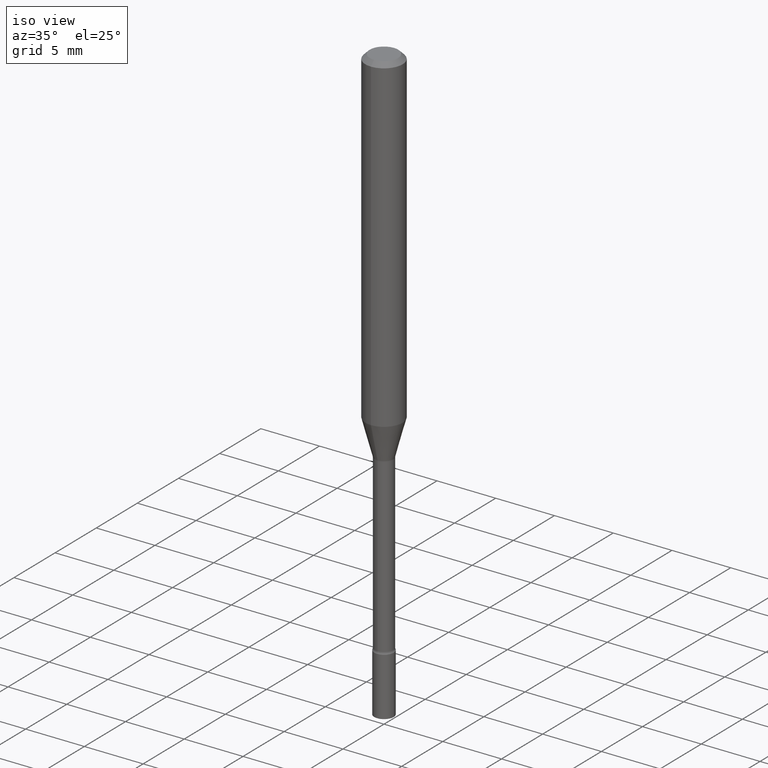
[diagram: clean part render]
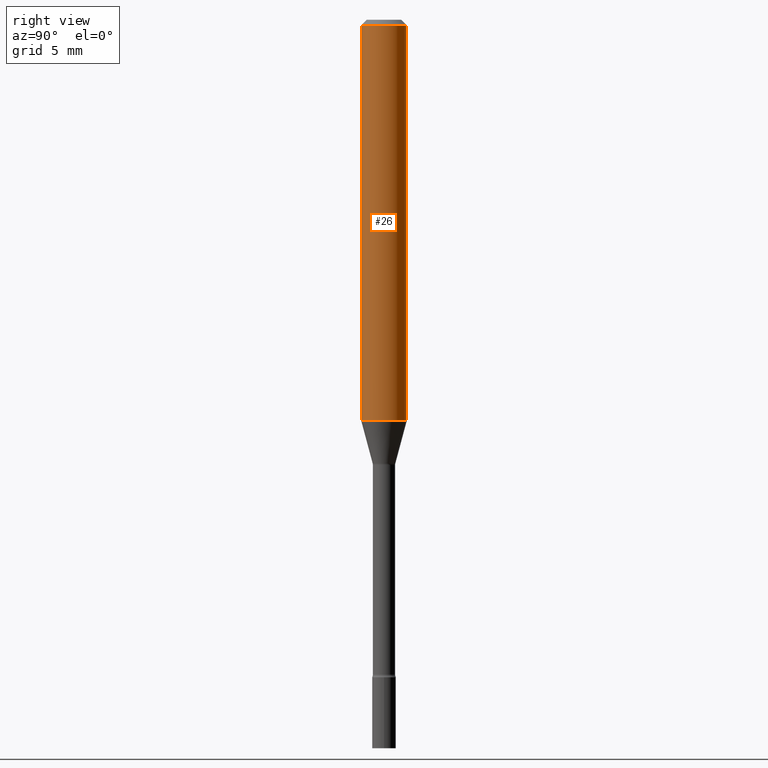
[diagram: tour spotlight — one face highlighted and labeled with its STEP entity id]
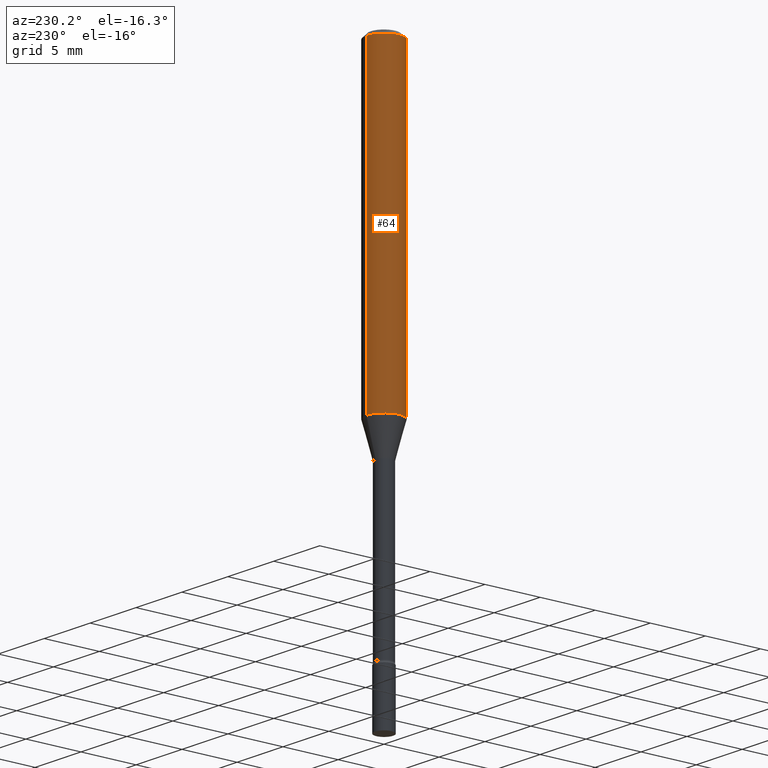
[diagram: tour spotlight — one face highlighted and labeled with its STEP entity id]
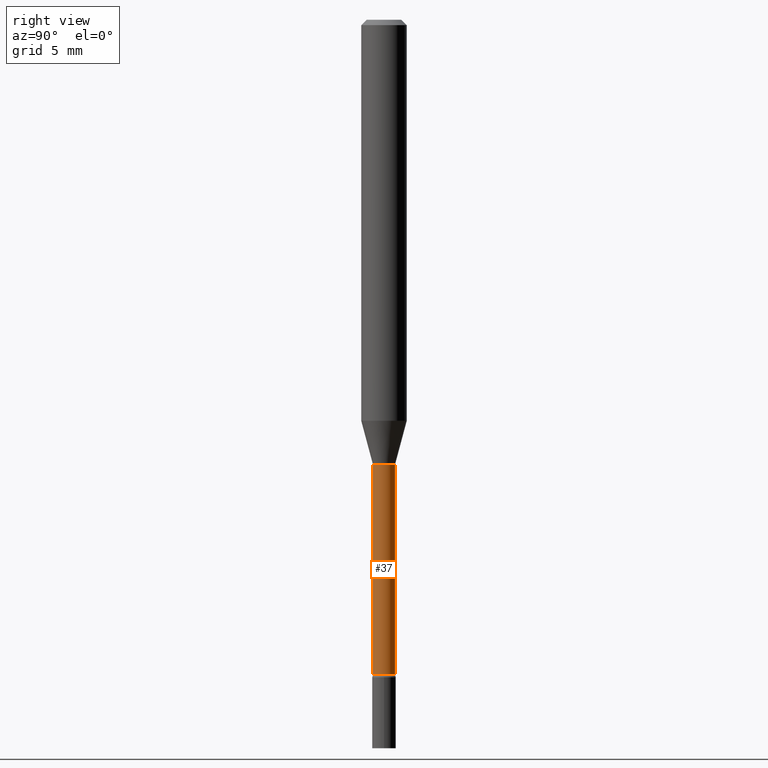
[diagram: tour spotlight — one face highlighted and labeled with its STEP entity id]
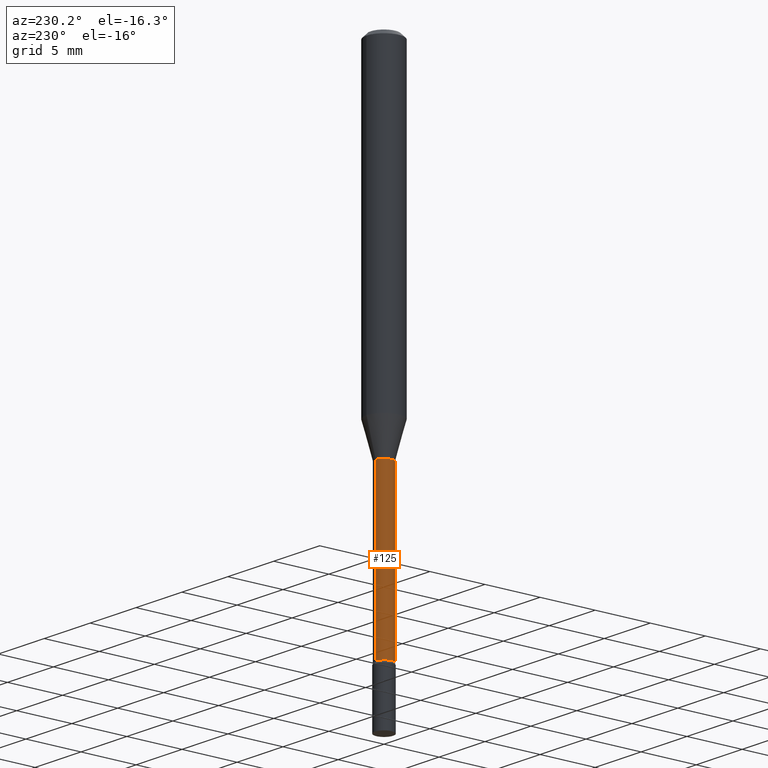
[diagram: tour spotlight — one face highlighted and labeled with its STEP entity id]
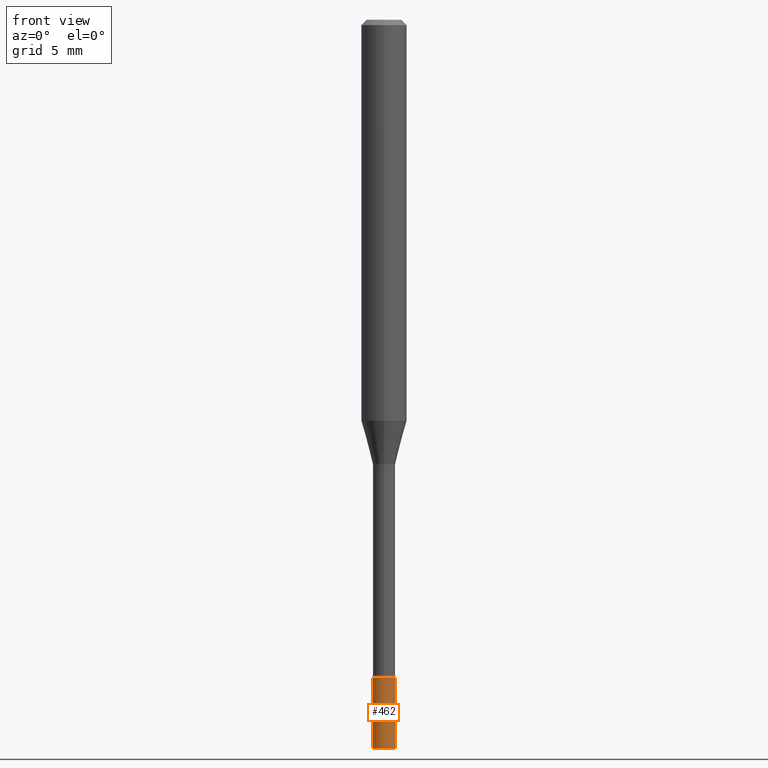
[diagram: tour spotlight — one face highlighted and labeled with its STEP entity id]
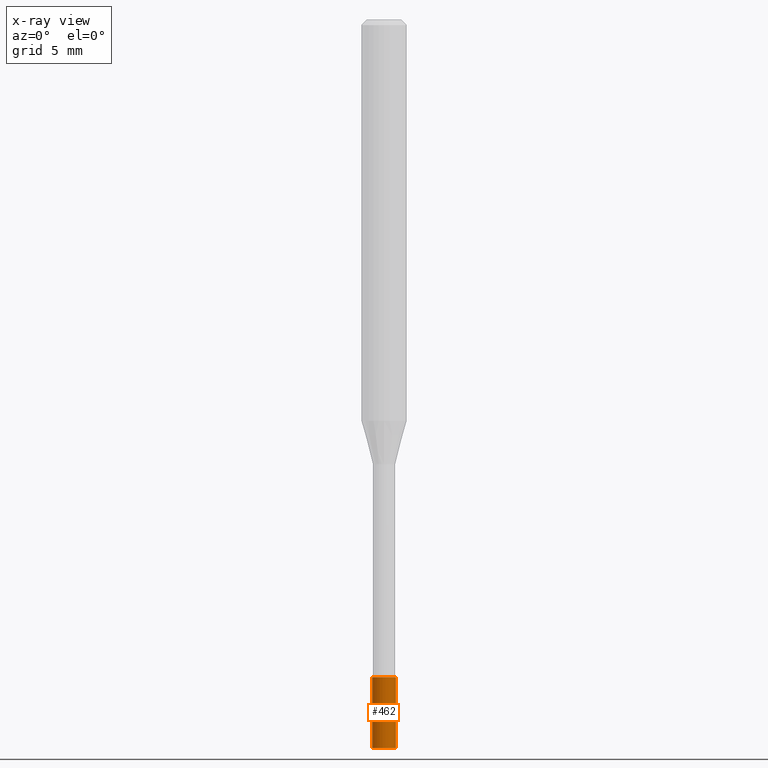
[diagram: x-ray of the same camera — body ghosted, this tour face saturated]
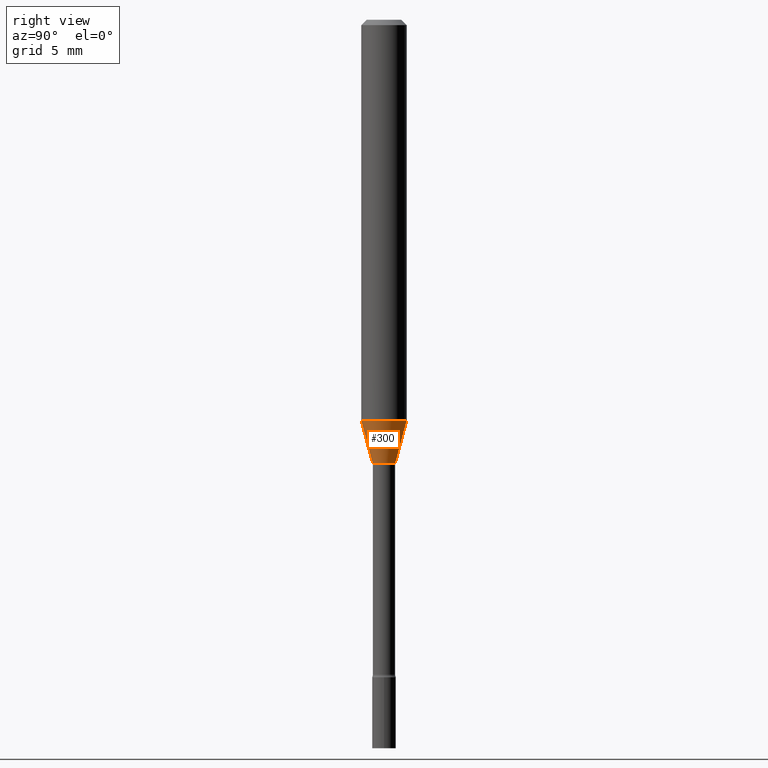
[diagram: tour spotlight — one face highlighted and labeled with its STEP entity id]
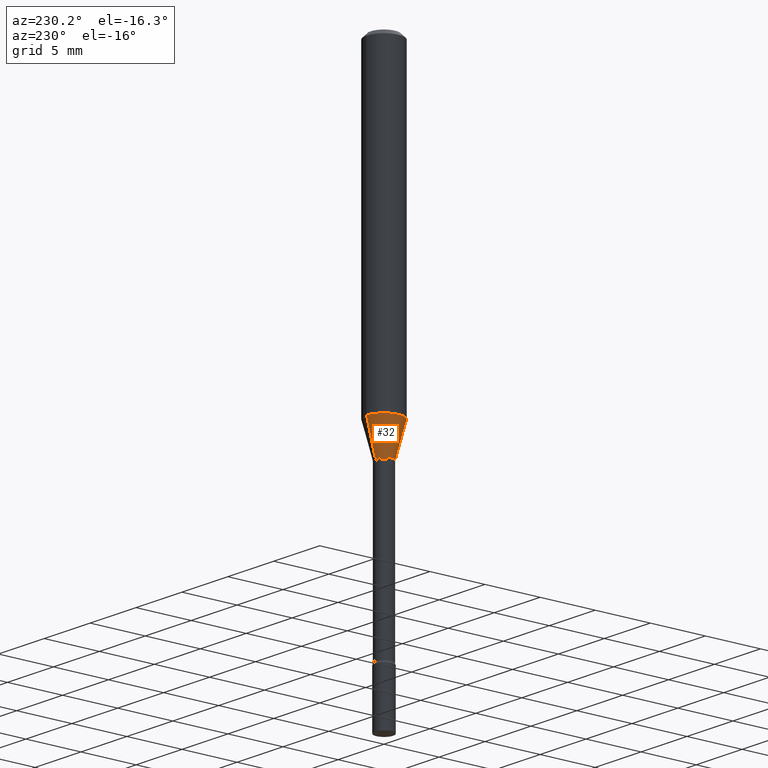
[diagram: tour spotlight — one face highlighted and labeled with its STEP entity id]
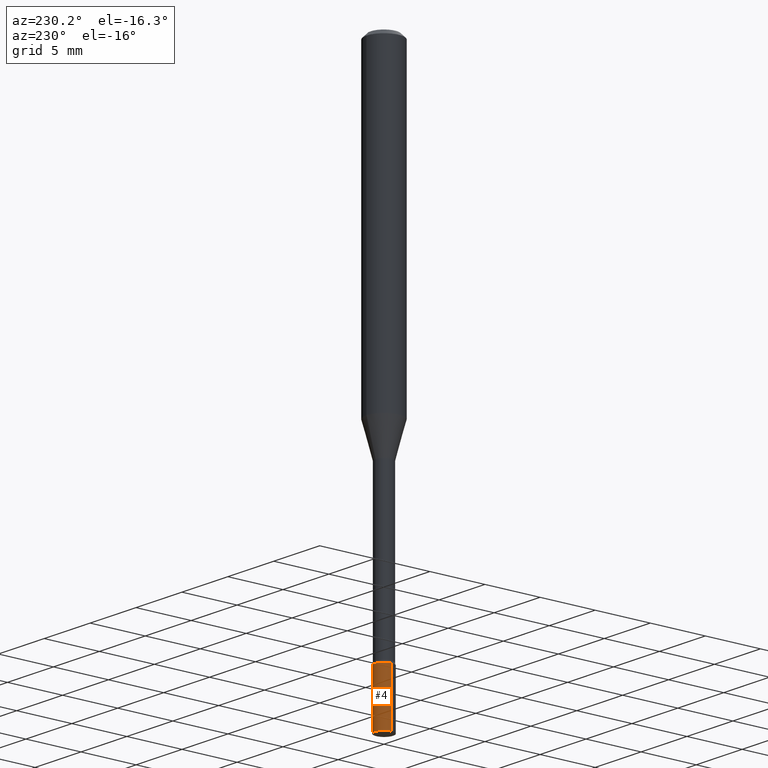
[diagram: tour spotlight — one face highlighted and labeled with its STEP entity id]
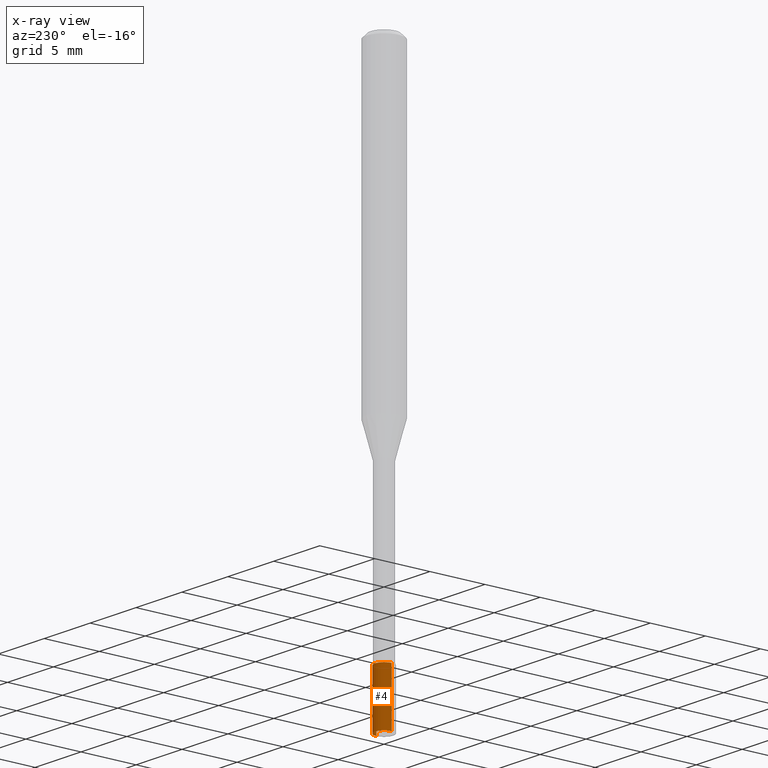
[diagram: x-ray of the same camera — body ghosted, this tour face saturated]
A machine part: a face-by-face anatomy tour. The part has 18 B-rep faces; the first image is the clean iso view, then the 8 largest visible faces are spotlighted one at a time (largest first), each with its STEP entity span.

Face 1 — right view, entity #26. In plain terms, the highlighted cylindrical surface (edge-blend (fillet) strip) has radius 1.5875 mm, axis along (-0, 0, 1).
Definition (entity closure, byte-faithful):
#3 = CIRCLE ( 'NONE', #333, 0.06250000000000000000 ) ;
#6 = VERTEX_POINT ( 'NONE', #324 ) ;
#11 = VERTEX_POINT ( 'NONE', #13 ) ;
#13 = CARTESIAN_POINT ( 'NONE',  ( -4.364351673553912750E-16, -0.06250000000000005551, -0.01499999999999981209 ) ) ;
#26 = ADVANCED_FACE ( 'NONE', ( #370 ), #257, .T. ) ;
#41 = AXIS2_PLACEMENT_3D ( 'NONE', #218, #460, #128 ) ;
#44 = DIRECTION ( 'NONE',  ( -2.445517885456446816E-29, 3.491411054533210764E-15, 1.000000000000000000 ) ) ;
#87 = ORIENTED_EDGE ( 'NONE', *, *, #436, .F. ) ;
#92 = VECTOR ( 'NONE', #44, 39.37007874015748143 ) ;
#93 = EDGE_LOOP ( 'NONE', ( #327, #142, #492, #87 ) ) ;
#113 = DIRECTION ( 'NONE',  ( -6.982962677686265922E-15, -1.000000000000000000, 4.370956789862821150E-15 ) ) ;
#128 = DIRECTION ( 'NONE',  ( -6.982962677686265922E-15, -1.000000000000000000, 3.491411054533210764E-15 ) ) ;
#134 = CARTESIAN_POINT ( 'NONE',  ( -4.364351673553916201E-16, -0.06250000000000000000, 2.182131909083256727E-16 ) ) ;
#142 = ORIENTED_EDGE ( 'NONE', *, *, #267, .T. ) ;
#156 = LINE ( 'NONE', #314, #92 ) ;
#181 = DIRECTION ( 'NONE',  ( -2.445517885456446816E-29, 3.491411054533210764E-15, 1.000000000000000000 ) ) ;
#182 = VERTEX_POINT ( 'NONE', #229 ) ;
#218 = CARTESIAN_POINT ( 'NONE',  ( 0.000000000000000000, 0.000000000000000000, 0.000000000000000000 ) ) ;
#229 = CARTESIAN_POINT ( 'NONE',  ( 4.440892098500897333E-16, 0.06249999999999995837, -0.01500000000000024751 ) ) ;
#231 = EDGE_CURVE ( 'NONE', #374, #6, #465, .T. ) ;
#257 = CYLINDRICAL_SURFACE ( 'NONE', #41, 0.06250000000000000000 ) ;
#267 = EDGE_CURVE ( 'NONE', #6, #182, #156, .T. ) ;
#303 = DIRECTION ( 'NONE',  ( -6.982962677686265922E-15, -1.000000000000000000, 3.483106191921935554E-15 ) ) ;
#314 = CARTESIAN_POINT ( 'NONE',  ( 4.440892098500625669E-16, 0.06250000000000000000, -2.182131909083256727E-16 ) ) ;
#320 = CARTESIAN_POINT ( 'NONE',  ( -4.364351673553646016E-16, -0.06250000000000383027, -1.100760976698174298 ) ) ;
#324 = CARTESIAN_POINT ( 'NONE',  ( 4.440892098500895360E-16, 0.06249999999999616279, -1.100760976698174742 ) ) ;
#327 = ORIENTED_EDGE ( 'NONE', *, *, #231, .T. ) ;
#333 = AXIS2_PLACEMENT_3D ( 'NONE', #469, #508, #303 ) ;
#356 = DIRECTION ( 'NONE',  ( -2.445517885456446816E-29, 3.491411054533210764E-15, 1.000000000000000000 ) ) ;
#370 = FACE_OUTER_BOUND ( 'NONE', #93, .T. ) ;
#374 = VERTEX_POINT ( 'NONE', #320 ) ;
#436 = EDGE_CURVE ( 'NONE', #374, #11, #495, .T. ) ;
#438 = AXIS2_PLACEMENT_3D ( 'NONE', #444, #356, #113 ) ;
#444 = CARTESIAN_POINT ( 'NONE',  ( 2.691930656127892449E-29, -3.843209042442780921E-15, -1.100760976698174520 ) ) ;
#460 = DIRECTION ( 'NONE',  ( -2.445517885456446816E-29, 3.491411054533210764E-15, 1.000000000000000000 ) ) ;
#465 = CIRCLE ( 'NONE', #438, 0.06250000000000000000 ) ;
#469 = CARTESIAN_POINT ( 'NONE',  ( 3.668276828184677738E-31, -5.237116581799826623E-17, -0.01500000000000003067 ) ) ;
#477 = EDGE_CURVE ( 'NONE', #11, #182, #3, .T. ) ;
#492 = ORIENTED_EDGE ( 'NONE', *, *, #477, .F. ) ;
#495 = LINE ( 'NONE', #134, #497 ) ;
#497 = VECTOR ( 'NONE', #181, 39.37007874015748143 ) ;
#508 = DIRECTION ( 'NONE',  ( -2.445517885456446816E-29, 3.491411054533210764E-15, 1.000000000000000000 ) ) ;

Face 2 — auxiliary view, entity #64. In plain terms, the highlighted cylindrical surface (edge-blend (fillet) strip) has radius 1.5875 mm, axis along (-0, 0, 1).
Definition (entity closure, byte-faithful):
#1 = EDGE_CURVE ( 'NONE', #6, #374, #116, .T. ) ;
#6 = VERTEX_POINT ( 'NONE', #324 ) ;
#11 = VERTEX_POINT ( 'NONE', #13 ) ;
#13 = CARTESIAN_POINT ( 'NONE',  ( -4.364351673553912750E-16, -0.06250000000000005551, -0.01499999999999981209 ) ) ;
#19 = EDGE_CURVE ( 'NONE', #182, #11, #86, .T. ) ;
#44 = DIRECTION ( 'NONE',  ( -2.445517885456446816E-29, 3.491411054533210764E-15, 1.000000000000000000 ) ) ;
#64 = ADVANCED_FACE ( 'NONE', ( #71 ), #186, .T. ) ;
#68 = DIRECTION ( 'NONE',  ( -6.982962677686265922E-15, -1.000000000000000000, 3.491411054533210764E-15 ) ) ;
#71 = FACE_OUTER_BOUND ( 'NONE', #136, .T. ) ;
#86 = CIRCLE ( 'NONE', #342, 0.06250000000000000000 ) ;
#90 = ORIENTED_EDGE ( 'NONE', *, *, #19, .F. ) ;
#92 = VECTOR ( 'NONE', #44, 39.37007874015748143 ) ;
#96 = ORIENTED_EDGE ( 'NONE', *, *, #436, .T. ) ;
#100 = DIRECTION ( 'NONE',  ( -2.445517885456446816E-29, 3.491411054533210764E-15, 1.000000000000000000 ) ) ;
#116 = CIRCLE ( 'NONE', #412, 0.06250000000000000000 ) ;
#134 = CARTESIAN_POINT ( 'NONE',  ( -4.364351673553916201E-16, -0.06250000000000000000, 2.182131909083256727E-16 ) ) ;
#136 = EDGE_LOOP ( 'NONE', ( #168, #409, #96, #90 ) ) ;
#153 = AXIS2_PLACEMENT_3D ( 'NONE', #344, #425, #68 ) ;
#156 = LINE ( 'NONE', #314, #92 ) ;
#168 = ORIENTED_EDGE ( 'NONE', *, *, #267, .F. ) ;
#181 = DIRECTION ( 'NONE',  ( -2.445517885456446816E-29, 3.491411054533210764E-15, 1.000000000000000000 ) ) ;
#182 = VERTEX_POINT ( 'NONE', #229 ) ;
#186 = CYLINDRICAL_SURFACE ( 'NONE', #153, 0.06250000000000000000 ) ;
#210 = DIRECTION ( 'NONE',  ( -6.982962677686265922E-15, -1.000000000000000000, 4.370956789862821150E-15 ) ) ;
#229 = CARTESIAN_POINT ( 'NONE',  ( 4.440892098500897333E-16, 0.06249999999999995837, -0.01500000000000024751 ) ) ;
#252 = CARTESIAN_POINT ( 'NONE',  ( 2.691930656127892449E-29, -3.843209042442780921E-15, -1.100760976698174520 ) ) ;
#267 = EDGE_CURVE ( 'NONE', #6, #182, #156, .T. ) ;
#292 = DIRECTION ( 'NONE',  ( -2.445517885456446816E-29, 3.491411054533210764E-15, 1.000000000000000000 ) ) ;
#294 = CARTESIAN_POINT ( 'NONE',  ( 3.668276828184677738E-31, -5.237116581799826623E-17, -0.01500000000000003067 ) ) ;
#314 = CARTESIAN_POINT ( 'NONE',  ( 4.440892098500625669E-16, 0.06250000000000000000, -2.182131909083256727E-16 ) ) ;
#320 = CARTESIAN_POINT ( 'NONE',  ( -4.364351673553646016E-16, -0.06250000000000383027, -1.100760976698174298 ) ) ;
#324 = CARTESIAN_POINT ( 'NONE',  ( 4.440892098500895360E-16, 0.06249999999999616279, -1.100760976698174742 ) ) ;
#342 = AXIS2_PLACEMENT_3D ( 'NONE', #294, #100, #490 ) ;
#344 = CARTESIAN_POINT ( 'NONE',  ( 0.000000000000000000, 0.000000000000000000, 0.000000000000000000 ) ) ;
#374 = VERTEX_POINT ( 'NONE', #320 ) ;
#409 = ORIENTED_EDGE ( 'NONE', *, *, #1, .T. ) ;
#412 = AXIS2_PLACEMENT_3D ( 'NONE', #252, #292, #210 ) ;
#425 = DIRECTION ( 'NONE',  ( -2.445517885456446816E-29, 3.491411054533210764E-15, 1.000000000000000000 ) ) ;
#436 = EDGE_CURVE ( 'NONE', #374, #11, #495, .T. ) ;
#490 = DIRECTION ( 'NONE',  ( -6.982962677686265922E-15, -1.000000000000000000, 3.483106191921935554E-15 ) ) ;
#495 = LINE ( 'NONE', #134, #497 ) ;
#497 = VECTOR ( 'NONE', #181, 39.37007874015748143 ) ;

Face 3 — right view, entity #37. In plain terms, the highlighted cylindrical surface (edge-blend (fillet) strip) has radius 0.776 mm, axis along (-0, 0, 1).
Definition (entity closure, byte-faithful):
#27 = CARTESIAN_POINT ( 'NONE',  ( 0.000000000000000000, 0.000000000000000000, 0.000000000000000000 ) ) ;
#37 = ADVANCED_FACE ( 'NONE', ( #226 ), #299, .T. ) ;
#39 = CARTESIAN_POINT ( 'NONE',  ( 2.988361198319589844E-29, -4.266416281312019547E-15, -1.221974787463810941 ) ) ;
#53 = VERTEX_POINT ( 'NONE', #348 ) ;
#77 = EDGE_CURVE ( 'NONE', #418, #361, #380, .T. ) ;
#139 = ORIENTED_EDGE ( 'NONE', *, *, #77, .F. ) ;
#140 = CARTESIAN_POINT ( 'NONE',  ( 4.396073281200893495E-29, -6.276175259972856303E-15, -1.797604224178627419 ) ) ;
#144 = DIRECTION ( 'NONE',  ( -2.445517885456446816E-29, 3.491411054533210764E-15, 1.000000000000000000 ) ) ;
#149 = DIRECTION ( 'NONE',  ( -6.982962677686265922E-15, -1.000000000000000000, 3.491411054533210764E-15 ) ) ;
#167 = EDGE_CURVE ( 'NONE', #328, #53, #296, .T. ) ;
#169 = AXIS2_PLACEMENT_3D ( 'NONE', #39, #393, #360 ) ;
#170 = ORIENTED_EDGE ( 'NONE', *, *, #398, .T. ) ;
#194 = AXIS2_PLACEMENT_3D ( 'NONE', #27, #304, #149 ) ;
#203 = CARTESIAN_POINT ( 'NONE',  ( -2.133295098032855987E-16, -0.03055000000000427512, -1.221974787463810719 ) ) ;
#204 = EDGE_CURVE ( 'NONE', #361, #53, #315, .T. ) ;
#220 = ORIENTED_EDGE ( 'NONE', *, *, #204, .F. ) ;
#226 = FACE_OUTER_BOUND ( 'NONE', #457, .T. ) ;
#232 = CARTESIAN_POINT ( 'NONE',  ( -2.133295098033156247E-16, -0.03055000000000002852, 1.066626077159896874E-16 ) ) ;
#263 = DIRECTION ( 'NONE',  ( -6.982962677686265922E-15, -1.000000000000000000, 0.000000000000000000 ) ) ;
#286 = DIRECTION ( 'NONE',  ( -2.445517885456446816E-29, 3.491411054533210764E-15, 1.000000000000000000 ) ) ;
#296 = LINE ( 'NONE', #514, #332 ) ;
#299 = CYLINDRICAL_SURFACE ( 'NONE', #194, 0.03055000000000002852 ) ;
#304 = DIRECTION ( 'NONE',  ( -2.445517885456446816E-29, 3.491411054533210764E-15, 1.000000000000000000 ) ) ;
#315 = CIRCLE ( 'NONE', #169, 0.03055000000000000770 ) ;
#328 = VERTEX_POINT ( 'NONE', #355 ) ;
#332 = VECTOR ( 'NONE', #391, 39.37007874015748143 ) ;
#348 = CARTESIAN_POINT ( 'NONE',  ( 2.170708057747547391E-16, 0.03054999999999574029, -1.221974787463810941 ) ) ;
#355 = CARTESIAN_POINT ( 'NONE',  ( 2.239985974484157911E-16, 0.03054999999999377658, -1.797604224178627419 ) ) ;
#360 = DIRECTION ( 'NONE',  ( -6.982962677686265922E-15, -1.000000000000000000, 4.471109645931689948E-15 ) ) ;
#361 = VERTEX_POINT ( 'NONE', #203 ) ;
#375 = VECTOR ( 'NONE', #144, 39.37007874015748143 ) ;
#380 = LINE ( 'NONE', #232, #375 ) ;
#391 = DIRECTION ( 'NONE',  ( -2.445517885456446816E-29, 3.491411054533210764E-15, 1.000000000000000000 ) ) ;
#393 = DIRECTION ( 'NONE',  ( -2.445517885456446816E-29, 3.491411054533210764E-15, 1.000000000000000000 ) ) ;
#398 = EDGE_CURVE ( 'NONE', #418, #328, #481, .T. ) ;
#418 = VERTEX_POINT ( 'NONE', #451 ) ;
#446 = ORIENTED_EDGE ( 'NONE', *, *, #167, .T. ) ;
#451 = CARTESIAN_POINT ( 'NONE',  ( -2.133295098032718183E-16, -0.03055000000000632557, -1.797604224178627419 ) ) ;
#457 = EDGE_LOOP ( 'NONE', ( #170, #446, #220, #139 ) ) ;
#481 = CIRCLE ( 'NONE', #516, 0.03055000000000004934 ) ;
#514 = CARTESIAN_POINT ( 'NONE',  ( 2.170708057747107848E-16, 0.03055000000000002852, -1.066626077159896874E-16 ) ) ;
#516 = AXIS2_PLACEMENT_3D ( 'NONE', #140, #286, #263 ) ;

Face 4 — auxiliary view, entity #125. In plain terms, the highlighted cylindrical surface (edge-blend (fillet) strip) has radius 0.776 mm, axis along (-0, 0, 1).
Definition (entity closure, byte-faithful):
#43 = ORIENTED_EDGE ( 'NONE', *, *, #171, .T. ) ;
#53 = VERTEX_POINT ( 'NONE', #348 ) ;
#77 = EDGE_CURVE ( 'NONE', #418, #361, #380, .T. ) ;
#99 = ORIENTED_EDGE ( 'NONE', *, *, #138, .F. ) ;
#101 = DIRECTION ( 'NONE',  ( -2.445517885456446816E-29, 3.491411054533210764E-15, 1.000000000000000000 ) ) ;
#102 = AXIS2_PLACEMENT_3D ( 'NONE', #346, #101, #266 ) ;
#112 = DIRECTION ( 'NONE',  ( -6.982962677686265922E-15, -1.000000000000000000, 0.000000000000000000 ) ) ;
#125 = ADVANCED_FACE ( 'NONE', ( #473 ), #270, .T. ) ;
#138 = EDGE_CURVE ( 'NONE', #53, #361, #322, .T. ) ;
#144 = DIRECTION ( 'NONE',  ( -2.445517885456446816E-29, 3.491411054533210764E-15, 1.000000000000000000 ) ) ;
#167 = EDGE_CURVE ( 'NONE', #328, #53, #296, .T. ) ;
#171 = EDGE_CURVE ( 'NONE', #328, #418, #283, .T. ) ;
#190 = CARTESIAN_POINT ( 'NONE',  ( 4.396073281200893495E-29, -6.276175259972856303E-15, -1.797604224178627419 ) ) ;
#203 = CARTESIAN_POINT ( 'NONE',  ( -2.133295098032855987E-16, -0.03055000000000427512, -1.221974787463810719 ) ) ;
#211 = ORIENTED_EDGE ( 'NONE', *, *, #167, .F. ) ;
#232 = CARTESIAN_POINT ( 'NONE',  ( -2.133295098033156247E-16, -0.03055000000000002852, 1.066626077159896874E-16 ) ) ;
#234 = DIRECTION ( 'NONE',  ( -2.445517885456446816E-29, 3.491411054533210764E-15, 1.000000000000000000 ) ) ;
#241 = AXIS2_PLACEMENT_3D ( 'NONE', #432, #234, #268 ) ;
#266 = DIRECTION ( 'NONE',  ( -6.982962677686265922E-15, -1.000000000000000000, 4.471109645931689948E-15 ) ) ;
#268 = DIRECTION ( 'NONE',  ( -6.982962677686265922E-15, -1.000000000000000000, 3.491411054533210764E-15 ) ) ;
#270 = CYLINDRICAL_SURFACE ( 'NONE', #241, 0.03055000000000002852 ) ;
#283 = CIRCLE ( 'NONE', #351, 0.03055000000000004934 ) ;
#296 = LINE ( 'NONE', #514, #332 ) ;
#308 = DIRECTION ( 'NONE',  ( -2.445517885456446816E-29, 3.491411054533210764E-15, 1.000000000000000000 ) ) ;
#322 = CIRCLE ( 'NONE', #102, 0.03055000000000000770 ) ;
#328 = VERTEX_POINT ( 'NONE', #355 ) ;
#332 = VECTOR ( 'NONE', #391, 39.37007874015748143 ) ;
#346 = CARTESIAN_POINT ( 'NONE',  ( 2.988361198319589844E-29, -4.266416281312019547E-15, -1.221974787463810941 ) ) ;
#348 = CARTESIAN_POINT ( 'NONE',  ( 2.170708057747547391E-16, 0.03054999999999574029, -1.221974787463810941 ) ) ;
#351 = AXIS2_PLACEMENT_3D ( 'NONE', #190, #308, #112 ) ;
#355 = CARTESIAN_POINT ( 'NONE',  ( 2.239985974484157911E-16, 0.03054999999999377658, -1.797604224178627419 ) ) ;
#361 = VERTEX_POINT ( 'NONE', #203 ) ;
#375 = VECTOR ( 'NONE', #144, 39.37007874015748143 ) ;
#380 = LINE ( 'NONE', #232, #375 ) ;
#391 = DIRECTION ( 'NONE',  ( -2.445517885456446816E-29, 3.491411054533210764E-15, 1.000000000000000000 ) ) ;
#408 = EDGE_LOOP ( 'NONE', ( #211, #43, #488, #99 ) ) ;
#418 = VERTEX_POINT ( 'NONE', #451 ) ;
#432 = CARTESIAN_POINT ( 'NONE',  ( 0.000000000000000000, 0.000000000000000000, 0.000000000000000000 ) ) ;
#451 = CARTESIAN_POINT ( 'NONE',  ( -2.133295098032718183E-16, -0.03055000000000632557, -1.797604224178627419 ) ) ;
#473 = FACE_OUTER_BOUND ( 'NONE', #408, .T. ) ;
#488 = ORIENTED_EDGE ( 'NONE', *, *, #77, .T. ) ;
#514 = CARTESIAN_POINT ( 'NONE',  ( 2.170708057747107848E-16, 0.03055000000000002852, -1.066626077159896874E-16 ) ) ;

Face 5 — front view, entity #462. An x-ray twin of the same camera follows (body ghosted, this face saturated) — the face is partly hidden behind the body. In plain terms, the highlighted cylindrical surface (edge-blend (fillet) strip) has radius 0.8255 mm, axis along (-0, 0, 1).
Definition (entity closure, byte-faithful):
#31 = DIRECTION ( 'NONE',  ( -2.445468806185136597E-29, 3.491481338843145583E-15, 1.000000000000000000 ) ) ;
#48 = CARTESIAN_POINT ( 'NONE',  ( 0.03250000000000000111, -2.269462870248036484E-16, 1.584757452133678993E-30 ) ) ;
#50 = EDGE_LOOP ( 'NONE', ( #331, #423, #247, #172 ) ) ;
#65 = CARTESIAN_POINT ( 'NONE',  ( 0.03250000000000000111, -6.529070103636681305E-15, -1.804999999999999938 ) ) ;
#72 = DIRECTION ( 'NONE',  ( 1.000000000000000000, -6.982962677686258033E-15, 0.000000000000000000 ) ) ;
#88 = VERTEX_POINT ( 'NONE', #65 ) ;
#89 = LINE ( 'NONE', #214, #242 ) ;
#105 = EDGE_CURVE ( 'NONE', #498, #88, #365, .T. ) ;
#117 = AXIS2_PLACEMENT_3D ( 'NONE', #345, #384, #146 ) ;
#127 = DIRECTION ( 'NONE',  ( -2.445468806185136597E-29, 3.491481338843145583E-15, 1.000000000000000000 ) ) ;
#146 = DIRECTION ( 'NONE',  ( 1.000000000000000000, -6.982962677686265922E-15, 4.876176775795935232E-29 ) ) ;
#172 = ORIENTED_EDGE ( 'NONE', *, *, #105, .F. ) ;
#175 = VERTEX_POINT ( 'NONE', #193 ) ;
#176 = DIRECTION ( 'NONE',  ( 1.000000000000000000, -6.982962677686258033E-15, 0.000000000000000000 ) ) ;
#193 = CARTESIAN_POINT ( 'NONE',  ( 0.03250000000000000111, -7.209908964711093729E-15, -2.000000000000000000 ) ) ;
#209 = LINE ( 'NONE', #48, #385 ) ;
#214 = CARTESIAN_POINT ( 'NONE',  ( -0.03250000000000000111, 2.309263891220325683E-16, -1.598653904332844407E-30 ) ) ;
#223 = AXIS2_PLACEMENT_3D ( 'NONE', #274, #31, #72 ) ;
#228 = CARTESIAN_POINT ( 'NONE',  ( -0.03250000000000000111, -6.411616858027052188E-15, -2.000000000000000000 ) ) ;
#242 = VECTOR ( 'NONE', #329, 39.37007874015748143 ) ;
#247 = ORIENTED_EDGE ( 'NONE', *, *, #390, .T. ) ;
#274 = CARTESIAN_POINT ( 'NONE',  ( 4.414071195164171423E-29, -6.302123816611877952E-15, -1.804999999999999938 ) ) ;
#295 = FACE_OUTER_BOUND ( 'NONE', #50, .T. ) ;
#298 = AXIS2_PLACEMENT_3D ( 'NONE', #461, #127, #176 ) ;
#326 = DIRECTION ( 'NONE',  ( -2.445468806185136877E-29, 3.491481338843145188E-15, 1.000000000000000000 ) ) ;
#329 = DIRECTION ( 'NONE',  ( -2.445468806185136877E-29, 3.491481338843145188E-15, 1.000000000000000000 ) ) ;
#331 = ORIENTED_EDGE ( 'NONE', *, *, #427, .F. ) ;
#345 = CARTESIAN_POINT ( 'NONE',  ( 0.000000000000000000, 0.000000000000000000, 0.000000000000000000 ) ) ;
#352 = CIRCLE ( 'NONE', #298, 0.03250000000000000111 ) ;
#365 = CIRCLE ( 'NONE', #223, 0.03250000000000000111 ) ;
#384 = DIRECTION ( 'NONE',  ( -2.445468806185136597E-29, 3.491481338843145583E-15, 1.000000000000000000 ) ) ;
#385 = VECTOR ( 'NONE', #326, 39.37007874015748143 ) ;
#390 = EDGE_CURVE ( 'NONE', #175, #88, #209, .T. ) ;
#396 = EDGE_CURVE ( 'NONE', #486, #175, #352, .T. ) ;
#423 = ORIENTED_EDGE ( 'NONE', *, *, #396, .T. ) ;
#427 = EDGE_CURVE ( 'NONE', #486, #498, #89, .T. ) ;
#434 = CYLINDRICAL_SURFACE ( 'NONE', #117, 0.03250000000000000111 ) ;
#461 = CARTESIAN_POINT ( 'NONE',  ( 4.890937612370273194E-29, -6.982962677686291165E-15, -2.000000000000000000 ) ) ;
#462 = ADVANCED_FACE ( 'NONE', ( #295 ), #434, .T. ) ;
#486 = VERTEX_POINT ( 'NONE', #228 ) ;
#498 = VERTEX_POINT ( 'NONE', #510 ) ;
#510 = CARTESIAN_POINT ( 'NONE',  ( -0.03250000000000000111, -6.411616858027052188E-15, -1.804999999999999938 ) ) ;

Face 6 — right view, entity #300. In plain terms, the highlighted conical surface has half-angle 15 deg.
Definition (entity closure, byte-faithful):
#6 = VERTEX_POINT ( 'NONE', #324 ) ;
#18 = AXIS2_PLACEMENT_3D ( 'NONE', #85, #35, #206 ) ;
#35 = DIRECTION ( 'NONE',  ( -2.445517885456446816E-29, 3.491411054533210764E-15, 1.000000000000000000 ) ) ;
#36 = FACE_OUTER_BOUND ( 'NONE', #207, .T. ) ;
#58 = ORIENTED_EDGE ( 'NONE', *, *, #192, .T. ) ;
#67 = LINE ( 'NONE', #185, #162 ) ;
#79 = EDGE_CURVE ( 'NONE', #323, #6, #386, .T. ) ;
#85 = CARTESIAN_POINT ( 'NONE',  ( 2.978866999261165530E-29, -4.252861626184099890E-15, -1.218092501787273019 ) ) ;
#109 = CIRCLE ( 'NONE', #394, 0.03106111260566398607 ) ;
#113 = DIRECTION ( 'NONE',  ( -6.982962677686265922E-15, -1.000000000000000000, 4.370956789862821150E-15 ) ) ;
#133 = ORIENTED_EDGE ( 'NONE', *, *, #491, .F. ) ;
#152 = VECTOR ( 'NONE', #428, 39.37007874015748143 ) ;
#162 = VECTOR ( 'NONE', #347, 39.37007874015748854 ) ;
#185 = CARTESIAN_POINT ( 'NONE',  ( -2.168985900527322372E-16, -0.03106111260566823615, -1.218092501787273019 ) ) ;
#192 = EDGE_CURVE ( 'NONE', #503, #323, #109, .T. ) ;
#196 = CARTESIAN_POINT ( 'NONE',  ( 3.323958445579647462E-16, 0.03106111260565973600, -1.218092501787273241 ) ) ;
#206 = DIRECTION ( 'NONE',  ( -6.982962677686265922E-15, -1.000000000000000000, 4.397537249142375435E-15 ) ) ;
#207 = EDGE_LOOP ( 'NONE', ( #58, #415, #259, #133 ) ) ;
#231 = EDGE_CURVE ( 'NONE', #374, #6, #465, .T. ) ;
#246 = CONICAL_SURFACE ( 'NONE', #18, 0.03106111260566398607, 0.2617993877991497409 ) ;
#259 = ORIENTED_EDGE ( 'NONE', *, *, #231, .F. ) ;
#271 = CARTESIAN_POINT ( 'NONE',  ( 2.207024792658399811E-16, 0.03106111260565973600, -1.218092501787273241 ) ) ;
#300 = ADVANCED_FACE ( 'NONE', ( #36 ), #246, .T. ) ;
#311 = DIRECTION ( 'NONE',  ( -6.982962677686265922E-15, -1.000000000000000000, 4.397537249142375435E-15 ) ) ;
#320 = CARTESIAN_POINT ( 'NONE',  ( -4.364351673553646016E-16, -0.06250000000000383027, -1.100760976698174298 ) ) ;
#323 = VERTEX_POINT ( 'NONE', #196 ) ;
#324 = CARTESIAN_POINT ( 'NONE',  ( 4.440892098500895360E-16, 0.06249999999999616279, -1.100760976698174742 ) ) ;
#347 = DIRECTION ( 'NONE',  ( -1.807323732225326589E-15, -0.2588190451025176864, 0.9659258262890690894 ) ) ;
#356 = DIRECTION ( 'NONE',  ( -2.445517885456446816E-29, 3.491411054533210764E-15, 1.000000000000000000 ) ) ;
#374 = VERTEX_POINT ( 'NONE', #320 ) ;
#386 = LINE ( 'NONE', #271, #152 ) ;
#394 = AXIS2_PLACEMENT_3D ( 'NONE', #437, #435, #311 ) ;
#415 = ORIENTED_EDGE ( 'NONE', *, *, #79, .T. ) ;
#428 = DIRECTION ( 'NONE',  ( 1.839019923739596765E-15, 0.2588190451025244587, 0.9659258262890673130 ) ) ;
#435 = DIRECTION ( 'NONE',  ( -2.445517885456446816E-29, 3.491411054533210764E-15, 1.000000000000000000 ) ) ;
#437 = CARTESIAN_POINT ( 'NONE',  ( 2.978866999261165530E-29, -4.252861626184099890E-15, -1.218092501787273019 ) ) ;
#438 = AXIS2_PLACEMENT_3D ( 'NONE', #444, #356, #113 ) ;
#444 = CARTESIAN_POINT ( 'NONE',  ( 2.691930656127892449E-29, -3.843209042442780921E-15, -1.100760976698174520 ) ) ;
#465 = CIRCLE ( 'NONE', #438, 0.06250000000000000000 ) ;
#491 = EDGE_CURVE ( 'NONE', #503, #374, #67, .T. ) ;
#503 = VERTEX_POINT ( 'NONE', #504 ) ;
#504 = CARTESIAN_POINT ( 'NONE',  ( -2.168985900527322372E-16, -0.03106111260566823615, -1.218092501787273019 ) ) ;

Face 7 — auxiliary view, entity #32. In plain terms, the highlighted conical surface has half-angle 15 deg.
Definition (entity closure, byte-faithful):
#1 = EDGE_CURVE ( 'NONE', #6, #374, #116, .T. ) ;
#6 = VERTEX_POINT ( 'NONE', #324 ) ;
#32 = ADVANCED_FACE ( 'NONE', ( #57 ), #265, .T. ) ;
#45 = ORIENTED_EDGE ( 'NONE', *, *, #1, .F. ) ;
#57 = FACE_OUTER_BOUND ( 'NONE', #293, .T. ) ;
#59 = DIRECTION ( 'NONE',  ( -6.982962677686265922E-15, -1.000000000000000000, 4.397537249142375435E-15 ) ) ;
#67 = LINE ( 'NONE', #185, #162 ) ;
#76 = AXIS2_PLACEMENT_3D ( 'NONE', #330, #264, #59 ) ;
#79 = EDGE_CURVE ( 'NONE', #323, #6, #386, .T. ) ;
#116 = CIRCLE ( 'NONE', #412, 0.06250000000000000000 ) ;
#124 = CIRCLE ( 'NONE', #255, 0.03106111260566398607 ) ;
#152 = VECTOR ( 'NONE', #428, 39.37007874015748143 ) ;
#162 = VECTOR ( 'NONE', #347, 39.37007874015748854 ) ;
#184 = EDGE_CURVE ( 'NONE', #323, #503, #124, .T. ) ;
#185 = CARTESIAN_POINT ( 'NONE',  ( -2.168985900527322372E-16, -0.03106111260566823615, -1.218092501787273019 ) ) ;
#196 = CARTESIAN_POINT ( 'NONE',  ( 3.323958445579647462E-16, 0.03106111260565973600, -1.218092501787273241 ) ) ;
#210 = DIRECTION ( 'NONE',  ( -6.982962677686265922E-15, -1.000000000000000000, 4.370956789862821150E-15 ) ) ;
#240 = DIRECTION ( 'NONE',  ( -2.445517885456446816E-29, 3.491411054533210764E-15, 1.000000000000000000 ) ) ;
#252 = CARTESIAN_POINT ( 'NONE',  ( 2.691930656127892449E-29, -3.843209042442780921E-15, -1.100760976698174520 ) ) ;
#255 = AXIS2_PLACEMENT_3D ( 'NONE', #485, #240, #354 ) ;
#264 = DIRECTION ( 'NONE',  ( -2.445517885456446816E-29, 3.491411054533210764E-15, 1.000000000000000000 ) ) ;
#265 = CONICAL_SURFACE ( 'NONE', #76, 0.03106111260566398607, 0.2617993877991497409 ) ;
#271 = CARTESIAN_POINT ( 'NONE',  ( 2.207024792658399811E-16, 0.03106111260565973600, -1.218092501787273241 ) ) ;
#292 = DIRECTION ( 'NONE',  ( -2.445517885456446816E-29, 3.491411054533210764E-15, 1.000000000000000000 ) ) ;
#293 = EDGE_LOOP ( 'NONE', ( #377, #404, #459, #45 ) ) ;
#320 = CARTESIAN_POINT ( 'NONE',  ( -4.364351673553646016E-16, -0.06250000000000383027, -1.100760976698174298 ) ) ;
#323 = VERTEX_POINT ( 'NONE', #196 ) ;
#324 = CARTESIAN_POINT ( 'NONE',  ( 4.440892098500895360E-16, 0.06249999999999616279, -1.100760976698174742 ) ) ;
#330 = CARTESIAN_POINT ( 'NONE',  ( 2.978866999261165530E-29, -4.252861626184099890E-15, -1.218092501787273019 ) ) ;
#347 = DIRECTION ( 'NONE',  ( -1.807323732225326589E-15, -0.2588190451025176864, 0.9659258262890690894 ) ) ;
#354 = DIRECTION ( 'NONE',  ( -6.982962677686265922E-15, -1.000000000000000000, 4.397537249142375435E-15 ) ) ;
#374 = VERTEX_POINT ( 'NONE', #320 ) ;
#377 = ORIENTED_EDGE ( 'NONE', *, *, #79, .F. ) ;
#386 = LINE ( 'NONE', #271, #152 ) ;
#404 = ORIENTED_EDGE ( 'NONE', *, *, #184, .T. ) ;
#412 = AXIS2_PLACEMENT_3D ( 'NONE', #252, #292, #210 ) ;
#428 = DIRECTION ( 'NONE',  ( 1.839019923739596765E-15, 0.2588190451025244587, 0.9659258262890673130 ) ) ;
#459 = ORIENTED_EDGE ( 'NONE', *, *, #491, .T. ) ;
#485 = CARTESIAN_POINT ( 'NONE',  ( 2.978866999261165530E-29, -4.252861626184099890E-15, -1.218092501787273019 ) ) ;
#491 = EDGE_CURVE ( 'NONE', #503, #374, #67, .T. ) ;
#503 = VERTEX_POINT ( 'NONE', #504 ) ;
#504 = CARTESIAN_POINT ( 'NONE',  ( -2.168985900527322372E-16, -0.03106111260566823615, -1.218092501787273019 ) ) ;

Face 8 — auxiliary view, entity #4. An x-ray twin of the same camera follows (body ghosted, this face saturated) — the face is partly hidden behind the body. In plain terms, the highlighted cylindrical surface (edge-blend (fillet) strip) has radius 0.8255 mm, axis along (-0, 0, 1).
Definition (entity closure, byte-faithful):
#4 = ADVANCED_FACE ( 'NONE', ( #337 ), #447, .T. ) ;
#7 = EDGE_LOOP ( 'NONE', ( #416, #493, #178, #372 ) ) ;
#9 = DIRECTION ( 'NONE',  ( -2.445468806185136597E-29, 3.491481338843145583E-15, 1.000000000000000000 ) ) ;
#10 = CIRCLE ( 'NONE', #61, 0.03250000000000000111 ) ;
#48 = CARTESIAN_POINT ( 'NONE',  ( 0.03250000000000000111, -2.269462870248036484E-16, 1.584757452133678993E-30 ) ) ;
#54 = EDGE_CURVE ( 'NONE', #88, #498, #357, .T. ) ;
#61 = AXIS2_PLACEMENT_3D ( 'NONE', #499, #336, #502 ) ;
#65 = CARTESIAN_POINT ( 'NONE',  ( 0.03250000000000000111, -6.529070103636681305E-15, -1.804999999999999938 ) ) ;
#69 = AXIS2_PLACEMENT_3D ( 'NONE', #335, #9, #97 ) ;
#88 = VERTEX_POINT ( 'NONE', #65 ) ;
#89 = LINE ( 'NONE', #214, #242 ) ;
#97 = DIRECTION ( 'NONE',  ( 1.000000000000000000, -6.982962677686265922E-15, 4.876176775795935232E-29 ) ) ;
#106 = CARTESIAN_POINT ( 'NONE',  ( 4.414071195164171423E-29, -6.302123816611877952E-15, -1.804999999999999938 ) ) ;
#175 = VERTEX_POINT ( 'NONE', #193 ) ;
#178 = ORIENTED_EDGE ( 'NONE', *, *, #54, .F. ) ;
#187 = DIRECTION ( 'NONE',  ( 1.000000000000000000, -6.982962677686258033E-15, 0.000000000000000000 ) ) ;
#189 = AXIS2_PLACEMENT_3D ( 'NONE', #106, #466, #187 ) ;
#193 = CARTESIAN_POINT ( 'NONE',  ( 0.03250000000000000111, -7.209908964711093729E-15, -2.000000000000000000 ) ) ;
#209 = LINE ( 'NONE', #48, #385 ) ;
#214 = CARTESIAN_POINT ( 'NONE',  ( -0.03250000000000000111, 2.309263891220325683E-16, -1.598653904332844407E-30 ) ) ;
#228 = CARTESIAN_POINT ( 'NONE',  ( -0.03250000000000000111, -6.411616858027052188E-15, -2.000000000000000000 ) ) ;
#242 = VECTOR ( 'NONE', #329, 39.37007874015748143 ) ;
#326 = DIRECTION ( 'NONE',  ( -2.445468806185136877E-29, 3.491481338843145188E-15, 1.000000000000000000 ) ) ;
#329 = DIRECTION ( 'NONE',  ( -2.445468806185136877E-29, 3.491481338843145188E-15, 1.000000000000000000 ) ) ;
#335 = CARTESIAN_POINT ( 'NONE',  ( 0.000000000000000000, 0.000000000000000000, 0.000000000000000000 ) ) ;
#336 = DIRECTION ( 'NONE',  ( -2.445468806185136597E-29, 3.491481338843145583E-15, 1.000000000000000000 ) ) ;
#337 = FACE_OUTER_BOUND ( 'NONE', #7, .T. ) ;
#357 = CIRCLE ( 'NONE', #189, 0.03250000000000000111 ) ;
#372 = ORIENTED_EDGE ( 'NONE', *, *, #390, .F. ) ;
#385 = VECTOR ( 'NONE', #326, 39.37007874015748143 ) ;
#390 = EDGE_CURVE ( 'NONE', #175, #88, #209, .T. ) ;
#416 = ORIENTED_EDGE ( 'NONE', *, *, #455, .T. ) ;
#427 = EDGE_CURVE ( 'NONE', #486, #498, #89, .T. ) ;
#447 = CYLINDRICAL_SURFACE ( 'NONE', #69, 0.03250000000000000111 ) ;
#455 = EDGE_CURVE ( 'NONE', #175, #486, #10, .T. ) ;
#466 = DIRECTION ( 'NONE',  ( -2.445468806185136597E-29, 3.491481338843145583E-15, 1.000000000000000000 ) ) ;
#486 = VERTEX_POINT ( 'NONE', #228 ) ;
#493 = ORIENTED_EDGE ( 'NONE', *, *, #427, .T. ) ;
#498 = VERTEX_POINT ( 'NONE', #510 ) ;
#499 = CARTESIAN_POINT ( 'NONE',  ( 4.890937612370273194E-29, -6.982962677686291165E-15, -2.000000000000000000 ) ) ;
#502 = DIRECTION ( 'NONE',  ( 1.000000000000000000, -6.982962677686258033E-15, 0.000000000000000000 ) ) ;
#510 = CARTESIAN_POINT ( 'NONE',  ( -0.03250000000000000111, -6.411616858027052188E-15, -1.804999999999999938 ) ) ;